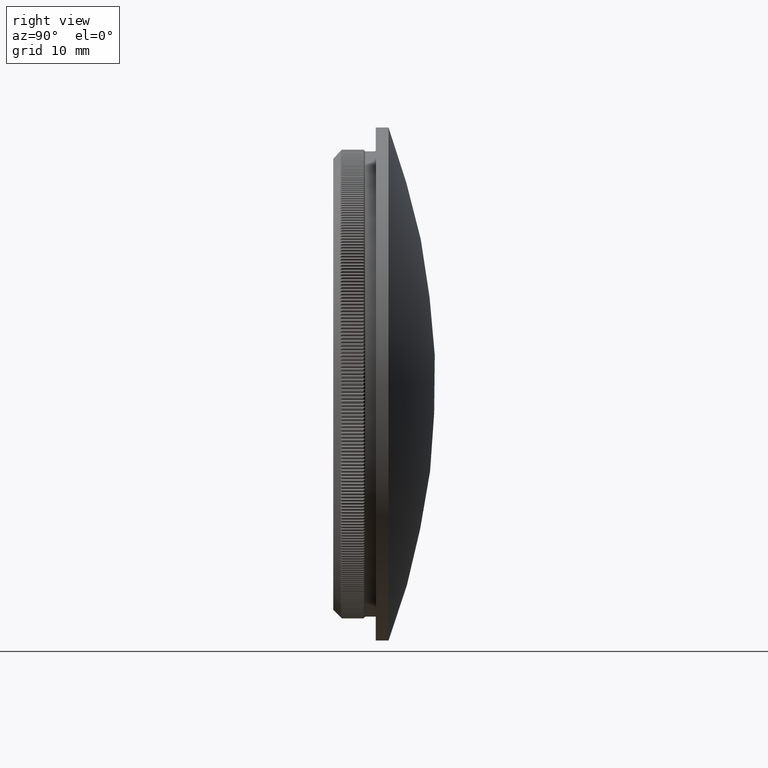
[diagram: clean part render]
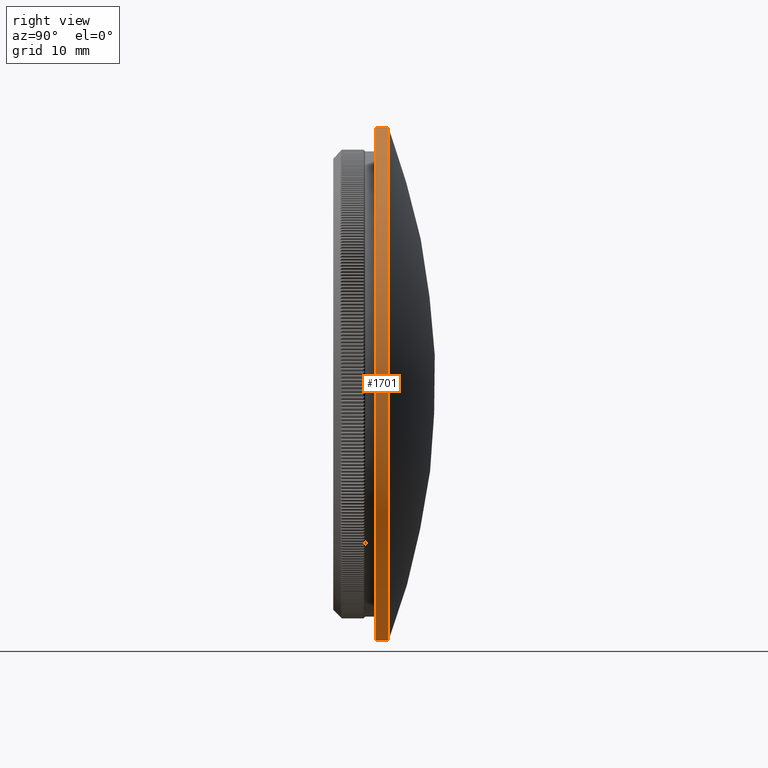
[diagram: same view with one face highlighted and labeled with its STEP entity id]
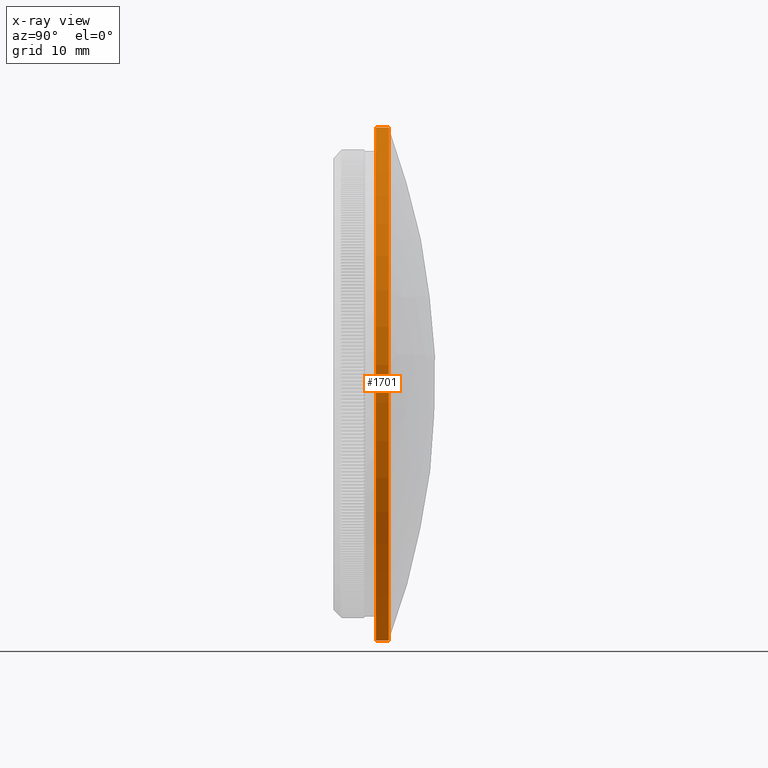
[diagram: x-ray of the same camera — body ghosted, the highlighted face saturated]
A machine part, right view. The second image highlights one B-rep face of the part: STEP entity #1701.
The next image is the same camera in x-ray: the body ghosted, the highlighted face saturated — about 0% of this face is hidden behind the body in this view.
In plain terms, the highlighted cylindrical surface (bore or boss wall) has radius 30.15 mm, axis along (-0, -1, -0).
Its self-contained STEP definition (entity closure, byte-faithful):
#1701 = ADVANCED_FACE ( 'NONE', ( #63270, #30552 ), #14981, .T. ) ;
#2841 = CIRCLE ( 'NONE', #5096, 30.14999999999999858 ) ;
#4962 = DIRECTION ( 'NONE',  ( 0.000000000000000000, 0.000000000000000000, -1.000000000000000000 ) ) ;
#5096 = AXIS2_PLACEMENT_3D ( 'NONE', #20643, #5171, #4962 ) ;
#5171 = DIRECTION ( 'NONE',  ( -0.000000000000000000, -1.000000000000000000, -0.000000000000000000 ) ) ;
#10466 = CARTESIAN_POINT ( 'NONE',  ( 0.000000000000000000, 6.500000000000005329, 0.000000000000000000 ) ) ;
#11538 = AXIS2_PLACEMENT_3D ( 'NONE', #10466, #35114, #50581 ) ;
#11828 = VERTEX_POINT ( 'NONE', #56525 ) ;
#12580 = EDGE_CURVE ( 'NONE', #11828, #11828, #2841, .T. ) ;
#14981 = CYLINDRICAL_SURFACE ( 'NONE', #36615, 30.14999999999999858 ) ;
#16241 = DIRECTION ( 'NONE',  ( -0.000000000000000000, -1.000000000000000000, -0.000000000000000000 ) ) ;
#20643 = CARTESIAN_POINT ( 'NONE',  ( 0.000000000000000000, 5.000000000000000000, 0.000000000000000000 ) ) ;
#21266 = DIRECTION ( 'NONE',  ( 0.000000000000000000, 0.000000000000000000, -1.000000000000000000 ) ) ;
#30552 = FACE_OUTER_BOUND ( 'NONE', #53857, .T. ) ;
#31272 = CARTESIAN_POINT ( 'NONE',  ( 0.000000000000000000, 0.000000000000000000, 0.000000000000000000 ) ) ;
#35114 = DIRECTION ( 'NONE',  ( -0.000000000000000000, -1.000000000000000000, -0.000000000000000000 ) ) ;
#35206 = VERTEX_POINT ( 'NONE', #36672 ) ;
#36615 = AXIS2_PLACEMENT_3D ( 'NONE', #31272, #16241, #21266 ) ;
#36672 = CARTESIAN_POINT ( 'NONE',  ( 0.000000000000000000, 6.500000000000005329, -30.14999999999999858 ) ) ;
#38543 = CIRCLE ( 'NONE', #11538, 30.14999999999999858 ) ;
#46768 = EDGE_LOOP ( 'NONE', ( #59069 ) ) ;
#50581 = DIRECTION ( 'NONE',  ( 0.000000000000000000, 0.000000000000000000, -1.000000000000000000 ) ) ;
#53857 = EDGE_LOOP ( 'NONE', ( #53903 ) ) ;
#53903 = ORIENTED_EDGE ( 'NONE', *, *, #12580, .F. ) ;
#56395 = EDGE_CURVE ( 'NONE', #35206, #35206, #38543, .T. ) ;
#56525 = CARTESIAN_POINT ( 'NONE',  ( 0.000000000000000000, 5.000000000000000000, -30.14999999999999858 ) ) ;
#59069 = ORIENTED_EDGE ( 'NONE', *, *, #56395, .T. ) ;
#63270 = FACE_OUTER_BOUND ( 'NONE', #46768, .T. ) ;